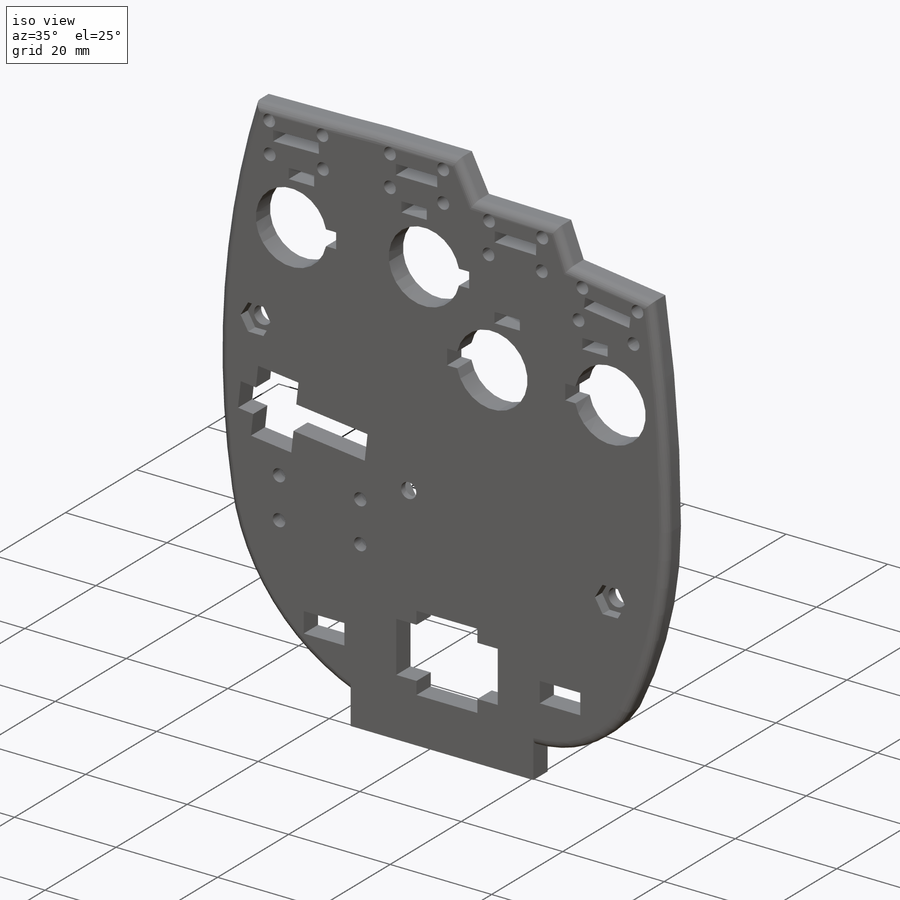
[diagram: iso view]
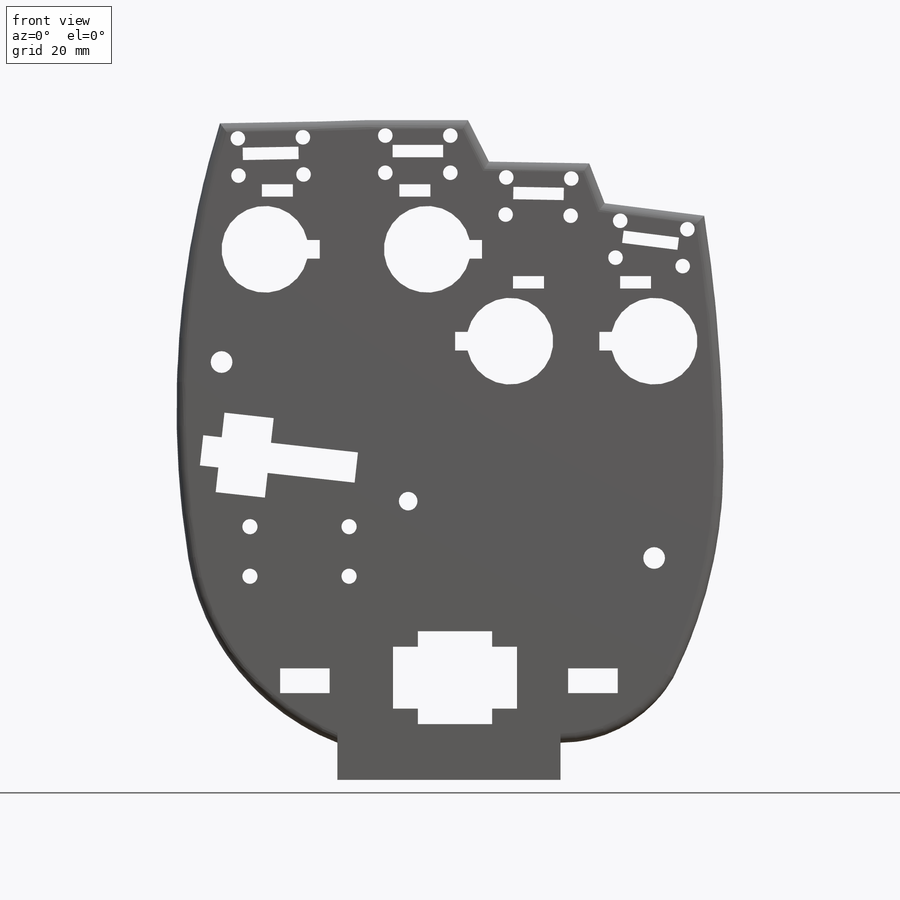
[diagram: front view]
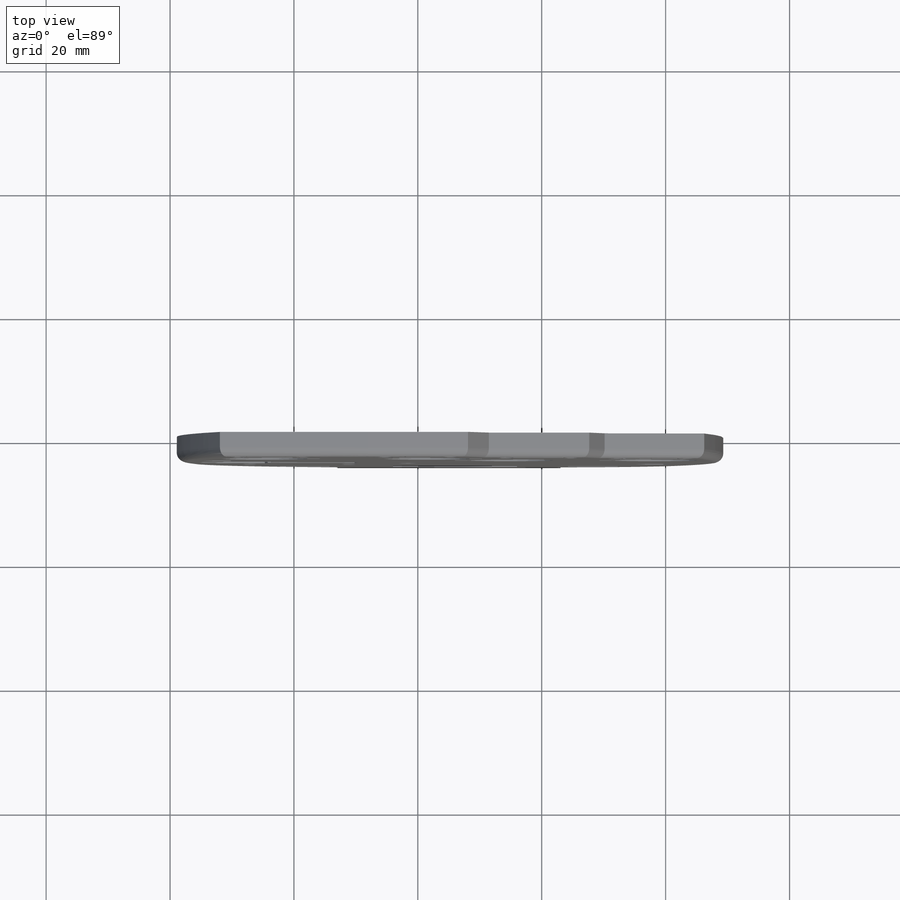
[diagram: top view]
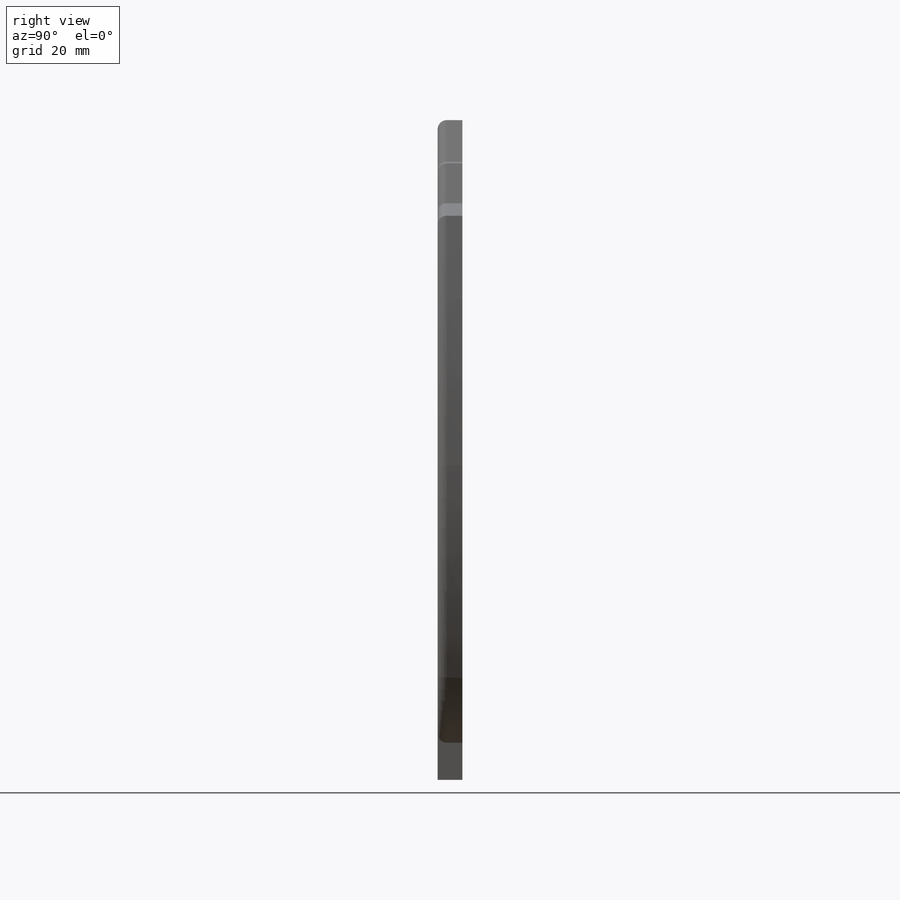
[diagram: right view]
SOLIDWORKS PART (.sldprt)
format: sldprt  version: not decoded by parser v0  size: 926,720 bytes
history: native  units: mm
features: sketch x6, extrude x3, cut_extrude x3, material x1, fillet x1 (+13 scaffold rows collapsed)
feature tree (27):
  scaffold x13  (default folders/planes/origin — collapsed)
  material  "Material <not specified>"
  sketch  "Sketch1"  dims[c1.D1=~60.892958mm c1.D2=4.0mm c1.D11=~67.890983mm c1.D12=~63.032848mm c1.D16=1.0mm c1.D17=1.0mm c1.D18=1.0mm c1.D19=1.0mm c1.D22=1.0mm c1.D23=1.0mm c1.D24=1.0mm c1.D25=1.0mm c1.D35=1.0mm c1.D36=1.0mm c1.D37=1.0mm c1.D38=1.0mm c1.D39=1.0mm c1.D40=1.0mm c1.D43=1.0mm c1.D44=1.0mm c2.D1=~60.892958mm c2.D2=4.0mm c2.D11=~67.890983mm c2.D12=~63.032848mm c2.D16=1.5mm c2.D17=1.5mm c2.D18=1.5mm c2.D19=1.5mm c2.D22=1.5mm c2.D23=1.5mm c2.D24=1.5mm c2.D25=1.5mm c2.D35=1.0mm c2.D36=1.5mm c2.D37=1.5mm c2.D38=1.5mm c2.D39=1.5mm c2.D40=1.5mm c2.D43=1.5mm c2.D44=1.5mm c2.D45=~6.199192mm c2.D46=2.0mm c2.D47=2.0mm c2.D49=4.0mm c2.D51=5.5mm c2.D55=4.0mm c2.D56=~5.537691mm c2.D13=8.0mm c3.D35=8.0mm c3.D45=8.0mm c3.D46=8.0mm c3.D58=6.0mm c3.D59=6.0mm c3.D60=2.0mm c3.D61=2.0mm c3.D63=6.0mm c3.D64=6.0mm c3.D65=2.0mm c3.D13=~5.993703mm c3.D52=~5.267956mm c4.D45=7.0mm c4.D48=7.0mm c4.D52=7.0mm c4.D53=7.0mm c4.D57=2.0mm c4.D69=1.5mm c4.D70=4.0mm c4.D71=2.5mm c4.D55=2.5mm c5.D57=2.0mm c5.D69=1.5mm c5.D70=4.0mm c5.D71=4.0mm c5.D79=4.0mm c5.D82=1.5mm c5.D55=2.5mm c6.D57=~491.646297mm c6.D63=~2.210001mm c6.D65=~3.778622mm c6.D67=4.0mm c6.D68=4.0mm c6.D92=~106.147601mm c6.D1=4.85mm c6.D2=2.35mm c6.D3=~938.698814mm c6.D4=2.5mm c6.D5=7.0mm c6.D6=~106.147601mm c6.D7=~38.571962mm c6.D8=~53.031069mm c6.D9=~16.88995mm c6.D45=9.0mm c6.D47=~111.685952mm c6.D13=~47.104403mm c6.D25=~222.787435mm c7.D47=~137.790991mm c7.D13=~20.756855mm c7.D29=~37.488926mm c7.D83=1.5mm c7.D69=~1.49928mm c7.D85=~37.265364mm c7.D87=~3.359497mm c7.D89=2.45mm c7.D98=~1.29928mm c7.D3=~53.983596mm c7.D4=~16.197533mm c7.D5=16.2mm c7.D6=~16.197533mm c7.D7=16.2mm c7.D8=~5.946522mm c7.D9=~7.00481mm c7.D10=~6.204145mm c8.D13=5.0mm c8.D14=2.0mm c8.D15=~1.999695mm c8.D20=9.0mm c8.D21=2.0mm c8.D26=5.0mm c8.D27=2.0mm c8.D28=9.0mm c8.D29=~1.999695mm c8.D30=9.0mm c8.D31=5.0mm c8.D32=2.0mm c8.D33=2.0mm c8.D34=5.0mm c8.D41=2.0mm c8.D42=9.0mm c8.D45=20.0mm c8.D46=6.0mm c8.D47=20.0mm c8.D48=12.0mm c8.D49=4.0mm c8.D50=40.0mm c8.D51=4.0mm c8.D3=~53.983596mm c8.D4=~16.197533mm c8.D5=16.2mm c8.D6=~16.197533mm c8.D7=16.2mm c8.D8=~5.946522mm c8.D9=~7.00481mm c8.D10=~6.204145mm c9.D13=5.0mm c9.D14=2.0mm c9.D15=~1.999695mm c9.D20=9.0mm c9.D21=2.0mm c9.D26=5.0mm c9.D27=2.0mm c9.D28=9.0mm c9.D29=~1.999695mm c9.D30=9.0mm c9.D31=5.0mm c9.D32=2.0mm c9.D33=2.0mm c9.D34=5.0mm c9.D41=2.0mm c9.D42=9.0mm c9.D45=20.0mm c9.D46=6.0mm c9.D47=20.0mm c9.D48=12.0mm c9.D49=4.0mm c9.D50=4.0mm c10.D45=~15.623581mm c10.D48=2.0mm c10.D49=22.0mm c10.D51=27.5mm c10.D52=20.0mm c10.D53=6.0mm c10.D54=20.0mm c10.D55=3.0mm c11.D49=6.0mm c11.D51=6.0mm c11.D13=2.0mm c11.D47=2.0mm c11.D48=3.0mm c12.D49=2.0mm c12.D51=3.0mm c12.D52=2.0mm c12.D53=3.0mm c12.D54=3.0mm c12.D56=2.0mm c12.D57=~15.291669mm c12.D62=~22.200381mm c13.D57=4.0mm c13.D58=4.0mm c13.D59=4.0mm c13.D60=4.0mm c13.D61=4.0mm c13.D62=4.0mm c13.D63=4.0mm c13.D64=4.0mm c13.D65=4.0mm c13.D66=4.0mm c13.D67=4.0mm c13.D68=4.0mm c14.D65=4.0mm c14.D66=4.0mm c14.D67=4.0mm c14.D69=~28.948718mm c14.D70=~19.000017mm c15.D69=5.5mm c15.D70=5.0mm c15.D71=5.5mm c15.D72=9.0mm c15.D73=9.0mm c15.D74=8.0mm c15.D75=6.0mm c15.D76=~36.678065mm c15.D77=5.0mm c15.D78=4.0mm c15.D57=11.72mm c15.D63=12.26mm c16.D57=4.0mm c16.D63=8.0mm c16.D76=11.72mm c16.D77=12.26mm c16.D78=6.0mm c16.D79=6.0mm c16.D80=5.5mm c16.D81=~17.356406mm c16.D82=~10.321658mm c16.D83=6.0mm c16.D84=30.0mm c16.D13=3.0mm c16.D35=2.0mm c16.D46=2.0mm c16.D47=3.0mm c17.D57=5.0mm c17.D72=4.0mm c17.D73=5.0mm c17.D79=~11.723568mm c17.D55=2.5mm c17.D81=~19.421473mm c17.D82=~22.365379mm c17.D63=6.0mm c17.D69=4.0mm c18.D69=90.0deg c19.D69=4.0mm c19.D75=6.0mm c19.D76=4.0mm c19.D77=5.0mm c19.D78=18.0mm c19.D11=8.0mm c19.D12=5.0mm c19.D57=4.0mm c19.D58=32.0mm c19.D59=6.0mm c19.D60=6.0mm c19.D61=6.0mm c19.D62=8.0mm c19.D64=32.0mm c19.D65=18.0mm c19.D66=~13.96338mm c20.D65=2.0mm c20.D63=6.0mm c21.D65=2.0mm c21.D66=~28.616503mm c21.D63=4.0mm c22.D65=6.0mm c22.D66=35.0mm c22.D68=7.0mm c22.D69=12.0mm c22.D71=4.0mm c22.D78=10.0mm c22.D79=36.0mm c22.D80=6.0mm c22.D81=7.0mm c22.D83=3.0mm c23.D65=6.0mm c23.D75=2.0mm c24.D65=8.0mm c24.D75=4.9mm c24.D76=3.0mm c24.D77=8.0mm c24.D83=~11.021359mm c24.D84=8.0mm c24.D85=5.0mm c24.D86=4.0mm c24.D87=~44.999935mm c24.D88=~50.999935mm c24.D11=8.0mm c24.D12=5.0mm c24.D57=6.0mm c24.D58=2.0mm c24.D59=~4.084541mm c24.D60=4.0mm c24.D61=~44.999935mm c25.D59=4.0mm c25.D61=2.0mm c25.D62=4.0mm c25.D64=5.0mm c25.D72=5.0mm c25.D73=4.0mm c25.D74=6.0mm c25.D81=4.0mm c25.D89=4.0mm c25.D90=6.0mm c25.D91=3.0mm c25.D92=~79.912969mm c25.D1=~8.769331mm c26.D1=~1.000001deg c26.D10=~0.96338mm c26.D11=~1.521421mm c26.D12=~2.021421mm c26.D13=~2.540447mm c26.D14=~4.021421mm c26.D15=~4.093394mm c26.D16=~4.771421mm c26.D17=~6.025668mm c26.D18=~7.621421mm c26.D19=~8.025668mm c26.D20=~8.358818mm c26.D21=~9.764299mm c26.D22=~10.358818mm c26.D23=12.0mm c26.D24=~12.465519mm c26.D25=~12.570234mm c26.D26=~13.259036mm c26.D27=~13.293941mm c26.D28=~13.996462mm c26.D29=~14.863065mm c26.D30=~15.363065mm c26.D31=16.0mm c26.D32=~19.353423mm c26.D33=~20.079994mm c26.D34=~20.363065mm c26.D35=~22.257665mm c26.D36=~22.29257mm c26.D37=~22.96392mm c26.D38=~23.021361mm c26.D39=~23.068635mm c26.D40=~25.961831mm c26.D41=~26.983437mm c26.D42=~27.224346mm c26.D43=~28.187972mm c26.D44=~29.309945mm c26.D45=~29.481128mm c26.D46=~29.537679mm c26.D47=~29.93103mm c26.D48=~31.309945mm c26.D49=~32.647342mm c26.D50=~35.147344mm c26.D51=~37.647342mm c26.D52=~38.147342mm c26.D53=~38.250458mm c26.D54=~38.418858mm c26.D55=~38.70036mm c26.D56=~39.768564mm c26.D57=~43.070338mm c26.D58=46.6941mm c26.D59=~903.026872mm c26.D60=~2.978579mm c26.D61=~3.53662mm c26.D62=4.0mm c26.D63=~4.978579mm c26.D64=~5.03662mm c26.D65=~5.728579mm c26.D66=~8.578579mm c26.D67=~9.150012mm c26.D68=~9.662201mm c26.D69=~10.054335mm c26.D70=~12.978641mm c26.D71=14.0mm c26.D72=~14.521337mm c26.D73=~15.841563mm c26.D74=~17.490843mm c26.D75=~17.595558mm c26.D76=~17.841563mm c26.D77=~18.054335mm c26.D78=~18.28436mm c26.D79=~18.319265mm c26.D80=~20.17896mm c26.D81=~22.054335mm c26.D82=~22.785984mm c26.D83=~23.204098mm c26.D84=~23.716288mm c26.D85=~24.134402mm c26.D86=~24.324508mm c26.D87=~24.67896mm c26.D88=~25.17896mm c26.D89=~27.054335mm c26.D90=~27.282989mm c26.D91=~27.317894mm c26.D92=~27.989244mm c26.D93=~28.093958mm c26.D94=~30.74216mm c26.D95=~31.160274mm c26.D96=~31.672463mm c26.D97=~31.681502mm c26.D98=~32.090577mm c26.D99=~33.21887mm c26.D100=~34.143839mm c26.D101=~34.656029mm c26.D102=~35.670375mm c26.D103=~59.54583mm c27.D10=~0.96338mm c27.D11=~1.521421mm c27.D12=~2.021421mm c27.D13=~2.540447mm c27.D14=~4.021421mm c27.D15=~4.093394mm c27.D16=~6.025668mm c27.D17=~7.621421mm c27.D18=~8.358818mm c27.D19=~9.764299mm c27.D20=12.0mm c27.D21=~12.465519mm c27.D22=~12.570234mm c27.D23=~13.259036mm c27.D24=~13.293941mm c27.D25=~13.996462mm c27.D26=~15.363065mm c27.D27=16.0mm c27.D28=~19.353423mm c27.D29=~20.079994mm c27.D30=~20.363065mm c27.D31=~22.257665mm c27.D32=~22.96392mm c27.D33=~23.021361mm c27.D34=~23.068635mm c27.D35=~25.961831mm c27.D36=~27.224346mm c27.D37=~28.187972mm c27.D38=~29.309945mm c27.D39=~29.481128mm c27.D40=~29.537679mm c27.D41=~29.93103mm c27.D42=~32.647342mm c27.D43=~35.147344mm c27.D44=~38.418858mm c27.D45=~39.768564mm c27.D46=~43.070338mm c27.D47=46.6941mm c27.D48=~903.026872mm c27.D49=~5.03662mm c27.D50=9.6615mm c27.D51=10.203mm c27.D52=~10.054335mm c27.D53=~12.978641mm c27.D54=14.0mm c27.D55=~14.521337mm c27.D56=~15.841563mm c27.D57=~17.490843mm c27.D58=~17.595558mm c27.D59=~18.054335mm c27.D60=~18.28436mm c27.D61=~18.319265mm c27.D62=~20.17896mm c27.D63=~22.054335mm c27.D64=~22.785984mm c27.D65=~23.204098mm c27.D66=~27.989244mm c27.D67=~28.093958mm c27.D68=~31.681502mm c27.D69=~33.21887mm c27.D70=~35.670375mm c27.D71=~1.875641mm c27.D72=~6.717006mm c27.D73=~7.810714mm c27.D74=~10.717006mm c27.D75=~11.697011mm c27.D76=~11.821617mm c27.D77=~13.412116mm c27.D78=~18.677986mm c27.D79=~21.026286mm c27.D80=~21.567256mm c27.D81=~22.403484mm c27.D82=24.0682mm c27.D83=~25.545344mm c27.D84=~26.381571mm c27.D85=~26.695157mm c27.D86=~27.657852mm c27.D87=~28.941357mm c27.D88=~30.418501mm c27.D89=~31.254729mm c27.D90=~31.335567mm c27.D91=~31.568314mm c27.D92=~34.241859mm c27.D93=~34.396589mm c27.D94=~35.232816mm c27.D95=~35.335567mm c27.D96=~38.719534mm c27.D97=~38.963703mm c27.D98=~42.719534mm c27.D99=~43.456406mm c27.D100=~45.321617mm c27.D101=~46.821617mm c27.D102=~46.875576mm c27.D103=~48.321617mm c27.D104=~50.875576mm c27.D105=~52.875576mm c27.D106=~55.321617mm c27.D107=~57.321617mm c27.D108=~58.321617mm c27.D109=~60.151219mm c27.D110=~60.683603mm c27.D111=~60.926256mm c27.D112=~61.651219mm c27.D113=~62.874996mm c27.D114=~62.950815mm c27.D115=~63.151219mm c27.D116=~64.167838mm c27.D117=~64.899555mm c27.D118=~66.115782mm c27.D119=~66.529824mm c27.D120=~67.109314mm c27.D121=~67.292564mm c27.D122=~69.483951mm c27.D123=~69.622023mm c27.D124=~69.779094mm c27.D125=~70.151219mm c27.D126=~71.621718mm c27.D127=~71.77879mm c27.D128=~72.151219mm c27.D129=73.1084mm c27.D130=~73.29165mm c27.D131=~73.559061mm c27.D132=~73.742311mm c27.D133=74.01mm c27.D134=~75.55828mm c27.D135=~75.841009mm c27.D136=~76.071769mm c27.D137=~76.228841mm c27.D138=76.51mm c27.D139=~78.071464mm c27.D140=~78.228536mm c27.D141=78.51mm c27.D142=~79.558147mm c27.D143=~79.741397mm c27.D144=80.01mm c27.D145=~82.015701mm c27.D146=~82.298431mm c27.D147=82.51mm c27.D148=~0.124359mm c27.D149=~1.368125mm c27.D150=~2.124359mm c27.D151=~8.999992mm c27.D152=~9.124359mm c27.D153=12.5mm c27.D154=15.0mm c27.D155=~17.999985mm c27.D156=~23.999986mm c28.D71=~1.875641mm c28.D72=~6.717006mm c28.D73=~7.810714mm c28.D74=~11.697011mm c28.D75=~11.821617mm c28.D76=21.571mm c28.D77=~31.335567mm c28.D78=~38.719534mm c28.D79=~43.456406mm c28.D80=~45.321617mm c28.D81=~46.875576mm c28.D82=~55.321617mm c28.D83=~58.321617mm c28.D84=~60.151219mm c28.D85=~67.109314mm c28.D86=~70.151219mm c28.D87=~73.559061mm c28.D88=74.01mm c28.D89=~75.55828mm c28.D90=76.51mm c28.D91=80.01mm c28.D92=82.51mm c28.D93=~9.124359mm c28.D94=12.5mm c28.D14=82.51mm c28.D17=4.0mm c28.D19=23.845mm c28.D21=82.14mm c28.D22=4.0mm c28.D23=19.57mm c28.D24=75.665mm c28.D31=38.19mm c28.D32=68.08mm c28.D34=4.0mm c28.D35=4.0mm c28.D36=16.2mm c28.D37=2.0mm c28.D39=9.0mm c28.D40=~46.821617mm c28.D41=~14.863065mm c28.D44=~24.67896mm c28.D45=~15.260028mm c28.D15=3.0mm c28.D28=~20.618561mm c29.D15=3.0mm c29.D28=0.0mm c29.D46=~4.319201mm c29.D25=~75.24652mm c30.D46=~0.729161mm c30.D47=~14.128496mm c30.D48=8.0mm c31.D47=~4.907754mm c31.D48=~25.128496mm c31.D55=24.0mm c31.D57=15.0mm c31.D25=~14.089727mm c32.D57=10.0mm c32.D20=10.0mm c32.D25=12.0mm c32.D27=2.5mm c33.D57=4.0mm c33.D58=~12.978641mm c33.D13=~3.791108mm c33.D29=~3.791108mm c33.D43=~3.13343mm c34.D58=~2.524083mm c34.D60=~2.796983mm c34.D61=~2.551038mm c34.D64=~2.451559mm c34.D65=~2.902149mm c34.D66=2.85mm c34.D67=2.5mm c34.D69=~2.875725mm c34.D70=~2.550577mm c34.D73=~2.451098mm c34.D74=~2.823407mm c34.D78=6.0mm c34.D13=4.0mm c34.D29=~3.141338mm c34.D34=~2.133041mm c34.D43=2.85mm c35.D58=2.5mm c35.D60=~3.824064mm c35.D61=~8.046997mm c35.D64=2.5mm c35.D65=2.85mm c35.D69=6.0mm c35.D39=2.85mm c35.D70=2.5mm c35.D73=2.85mm c36.D73=179.0deg c37.D73=9.0mm c38.D73=90.0deg c39.D73=9.0mm c39.D74=9.0mm c40.D73=~9.000072mm c40.D17=4.0mm c41.D73=~9.000072mm c41.D74=~9.00072mm c41.D29=~3.140101mm c41.D34=~2.123244mm c42.D29=2.5mm c42.D34=6.0mm c42.D60=6.0mm c42.D61=6.0mm c43.D60=8.1mm c43.D69=6.0mm c43.D83=8.1mm c43.D85=35.0mm c43.D75=35.0mm c43.D87=75.2mm c44.D85=75.2mm c45.D85=91.0deg c46.D85=2.0mm c46.D87=38.0mm c46.D88=25.0mm c46.D90=~6.584718mm c46.D91=25.0mm c47.D90=6.6mm c47.D91=~2.124359mm c47.D92=8.0mm c47.D94=16.0mm c47.D95=8.0mm c47.D96=4.5mm c47.D97=4.5mm c47.D98=4.5mm c48.D94=4.5mm c48.D97=~18.889168mm c49.D94=16.0mm c49.D97=2.0mm c49.D98=9.0mm c49.D64=3.0mm c50.D98=3.0mm c50.D99=3.0mm c50.D13=~130.801718deg]
  extrude  "Boss-Extrude1"  Depth=4mm
  sketch  "Sketch3"  dims[D1=4.0mm D2=8.0mm D3=14.0mm D4=19.25mm D5=54.5mm]
  cut_extrude  "Cut-Extrude2"  [1 undecoded]
  sketch  "Sketch4"  dims[D1=4.2mm]
  cut_extrude  "Cut-Extrude3"  Depth=2mm
  sketch  "Sketch2"  dims[D1=16.0mm D2=27.1mm]
  cut_extrude  "Cut-Extrude1"  Depth=2mm
  sketch  "Sketch5"  dims[c1.D1=~1.290318mm c1.D3=3.0mm c1.D6=9.0mm c1.D7=9.0mm c1.D10=3.5mm c1.D11=3.5mm c2.D1=~2.598076mm c2.D2=1.5mm c2.D4=9.153mm c2.D5=~30.365457mm c3.D4=9.6615mm c3.D5=10.203mm c3.D7=~4.907754mm c3.D8=~25.128496mm c3.D9=~24.072258mm c3.D10=~16.346117mm]
  extrude  "Boss-Extrude2"  Depth=1.2mm
  fillet  "Fillet1"  Radius=1.5mm
  sketch  "Sketch6"  dims[D1=3.5mm D2=3.5mm]
  extrude  "Boss-Extrude3"  Depth=2mm
decode coverage: 12 of 13 modeling features carry decoded parameters
note: ~ marks probable driven/reference dimensions
note: 1 parameter value undecoded
note: suppression state not decoded; provenance and decode notes live in map.json
